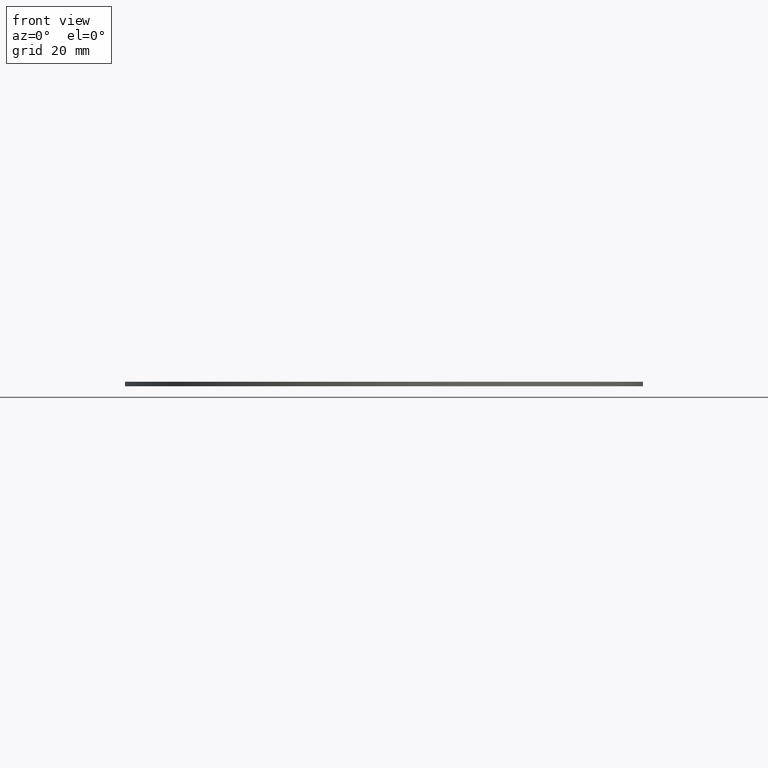
[diagram: clean part render]
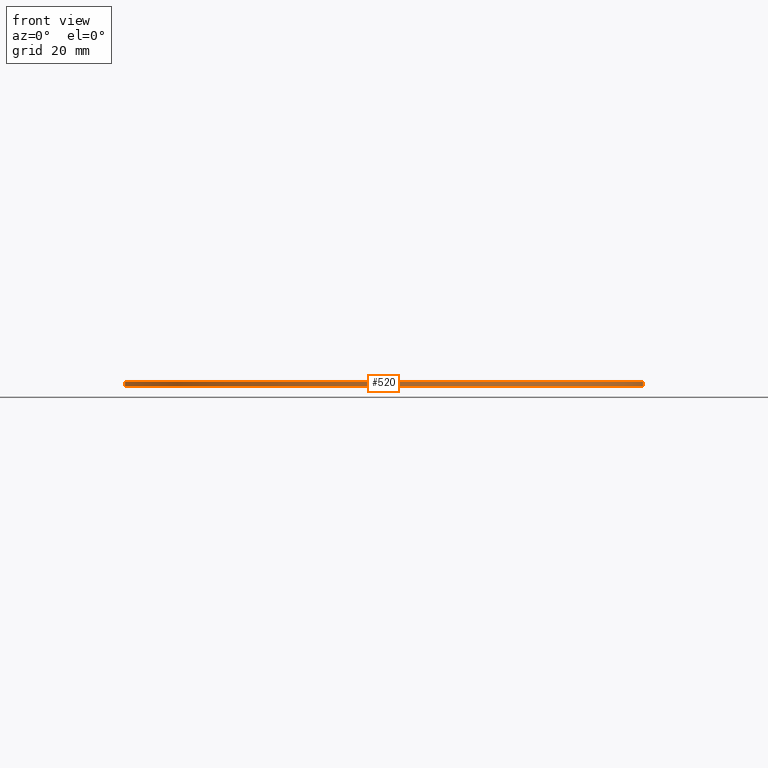
[diagram: same view with one face highlighted and labeled with its STEP entity id]
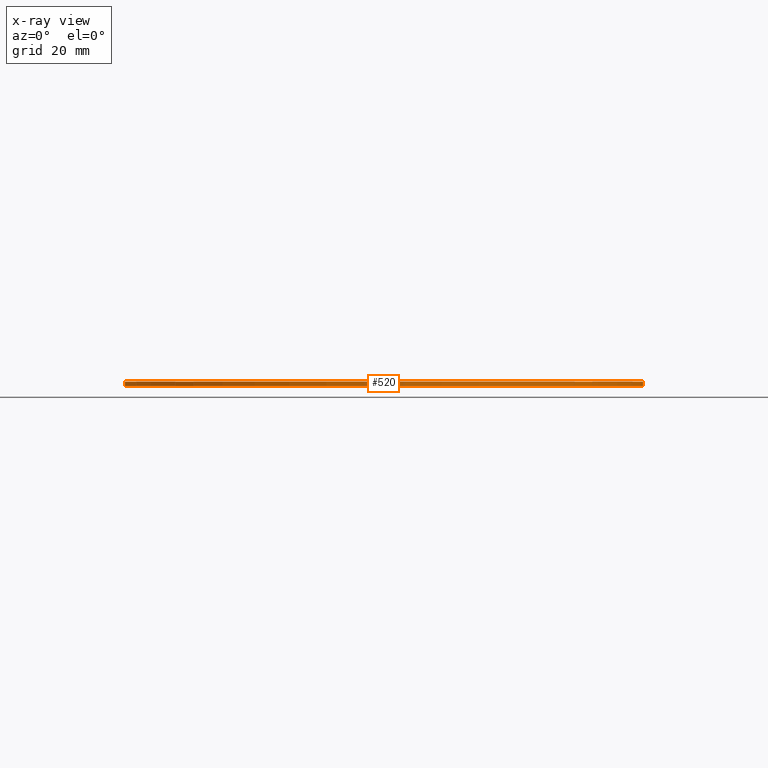
[diagram: x-ray of the same camera — body ghosted, the highlighted face saturated]
A machine part, front view. The second image highlights one B-rep face of the part: STEP entity #520.
The next image is the same camera in x-ray: the body ghosted, the highlighted face saturated — about 0% of this face is hidden behind the body in this view.
In plain terms, the highlighted cylindrical surface (partial cylindrical patch) has radius 85 mm, axis along (-0, 0, -1).
Its self-contained STEP definition (entity closure, byte-faithful):
#9 = DIRECTION ( 'NONE',  ( 8.517425179052550560E-32, -6.044410759837815523E-32, 1.000000000000000000 ) ) ;
#15 = CARTESIAN_POINT ( 'NONE',  ( -84.99999999999998579, 1.479114197289397135E-28, 1.499999999999945821 ) ) ;
#29 = DIRECTION ( 'NONE',  ( -1.000000000000000000, 0.000000000000000000, 0.000000000000000000 ) ) ;
#47 = AXIS2_PLACEMENT_3D ( 'NONE', #344, #502, #29 ) ;
#89 = VERTEX_POINT ( 'NONE', #201 ) ;
#132 = VECTOR ( 'NONE', #427, 1000.000000000000000 ) ;
#135 = ORIENTED_EDGE ( 'NONE', *, *, #466, .F. ) ;
#136 = DIRECTION ( 'NONE',  ( -8.517425179052550560E-32, 6.044410759837815523E-32, -1.000000000000000000 ) ) ;
#142 = CIRCLE ( 'NONE', #290, 84.99999999999998579 ) ;
#155 = VERTEX_POINT ( 'NONE', #380 ) ;
#157 = EDGE_CURVE ( 'NONE', #453, #446, #472, .T. ) ;
#165 = DIRECTION ( 'NONE',  ( 1.000000000000000000, 0.000000000000000000, 7.525872184246935696E-32 ) ) ;
#167 = AXIS2_PLACEMENT_3D ( 'NONE', #190, #9, #273 ) ;
#175 = CIRCLE ( 'NONE', #167, 84.99999999999998579 ) ;
#179 = ORIENTED_EDGE ( 'NONE', *, *, #448, .T. ) ;
#190 = CARTESIAN_POINT ( 'NONE',  ( -1.972152263052529514E-28, 1.479114197289397135E-28, 1.499999999999945821 ) ) ;
#192 = FACE_OUTER_BOUND ( 'NONE', #249, .T. ) ;
#201 = CARTESIAN_POINT ( 'NONE',  ( -84.99999999999998579, 1.479567528096384971E-28, 1.499999999999945821 ) ) ;
#229 = CARTESIAN_POINT ( 'NONE',  ( 84.99999999999998579, 1.040949779275264852E-14, -7.239811402194665174E-30 ) ) ;
#249 = EDGE_LOOP ( 'NONE', ( #465, #135, #179, #437 ) ) ;
#273 = DIRECTION ( 'NONE',  ( 1.000000000000000000, 0.000000000000000000, 0.000000000000000000 ) ) ;
#290 = AXIS2_PLACEMENT_3D ( 'NONE', #544, #425, #165 ) ;
#296 = EDGE_CURVE ( 'NONE', #155, #446, #142, .T. ) ;
#344 = CARTESIAN_POINT ( 'NONE',  ( -1.972152263052529514E-28, 1.479114197289397135E-28, 1.499999999999945821 ) ) ;
#349 = CARTESIAN_POINT ( 'NONE',  ( 84.99999999999998579, 1.040949779275264852E-14, 1.499999999999945821 ) ) ;
#380 = CARTESIAN_POINT ( 'NONE',  ( -84.99999999999998579, 1.479567528096384971E-28, 7.239811402194666575E-30 ) ) ;
#414 = CYLINDRICAL_SURFACE ( 'NONE', #47, 84.99999999999998579 ) ;
#419 = VECTOR ( 'NONE', #136, 1000.000000000000000 ) ;
#425 = DIRECTION ( 'NONE',  ( 8.517425179052550560E-32, -6.044410759837815523E-32, 1.000000000000000000 ) ) ;
#427 = DIRECTION ( 'NONE',  ( -8.517425179052550560E-32, 6.044410759837815523E-32, -1.000000000000000000 ) ) ;
#436 = LINE ( 'NONE', #15, #419 ) ;
#437 = ORIENTED_EDGE ( 'NONE', *, *, #296, .T. ) ;
#446 = VERTEX_POINT ( 'NONE', #229 ) ;
#448 = EDGE_CURVE ( 'NONE', #89, #155, #436, .T. ) ;
#453 = VERTEX_POINT ( 'NONE', #480 ) ;
#465 = ORIENTED_EDGE ( 'NONE', *, *, #157, .F. ) ;
#466 = EDGE_CURVE ( 'NONE', #89, #453, #175, .T. ) ;
#472 = LINE ( 'NONE', #349, #132 ) ;
#480 = CARTESIAN_POINT ( 'NONE',  ( 84.99999999999998579, 1.040949779275264852E-14, 1.499999999999945821 ) ) ;
#502 = DIRECTION ( 'NONE',  ( -8.517425179052550560E-32, 6.044410759837815523E-32, -1.000000000000000000 ) ) ;
#520 = ADVANCED_FACE ( 'NONE', ( #192 ), #414, .T. ) ;
#544 = CARTESIAN_POINT ( 'NONE',  ( 0.000000000000000000, 0.000000000000000000, 0.000000000000000000 ) ) ;